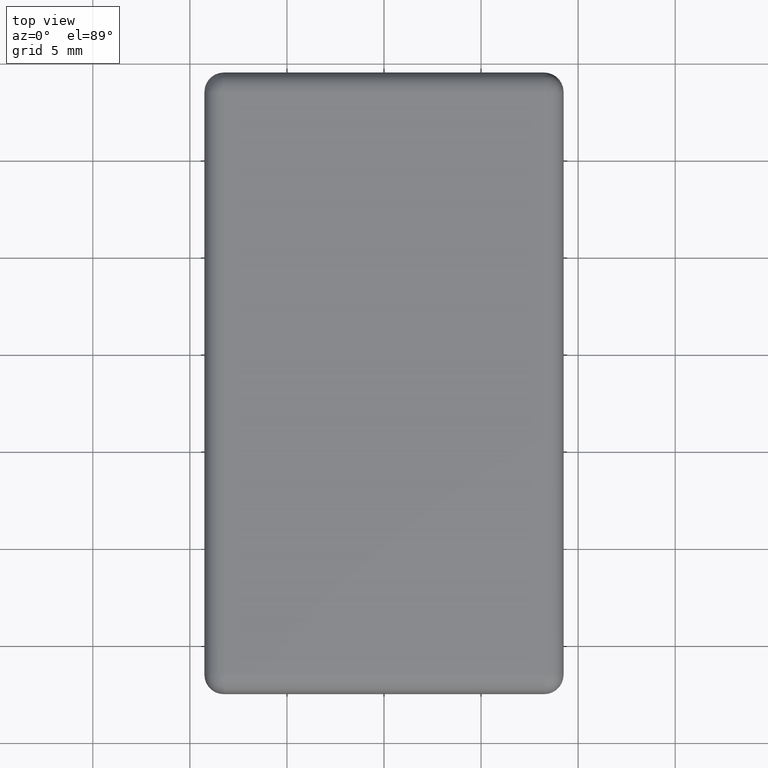
[diagram: clean part render]
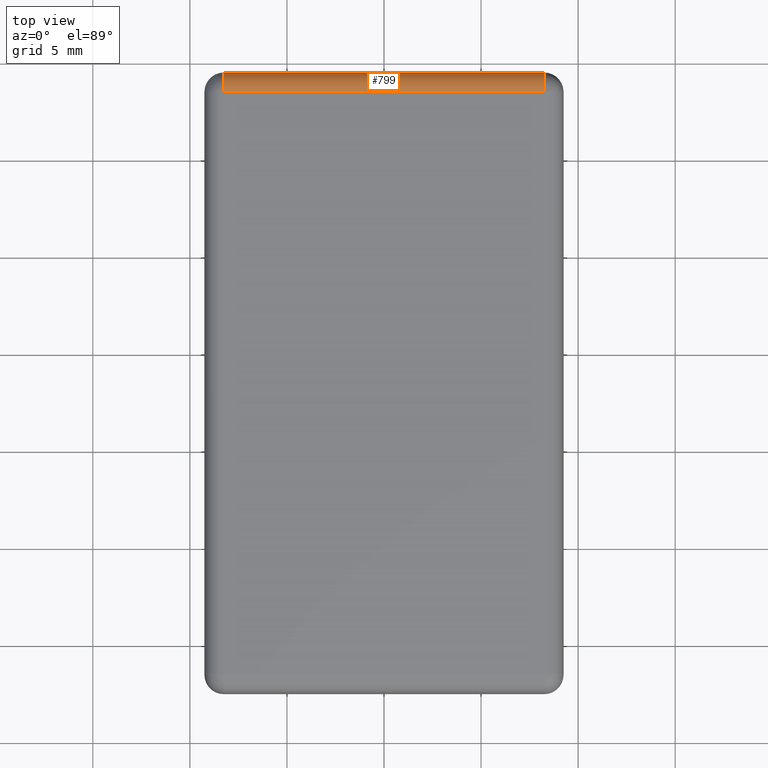
[diagram: same view with one face highlighted and labeled with its STEP entity id]
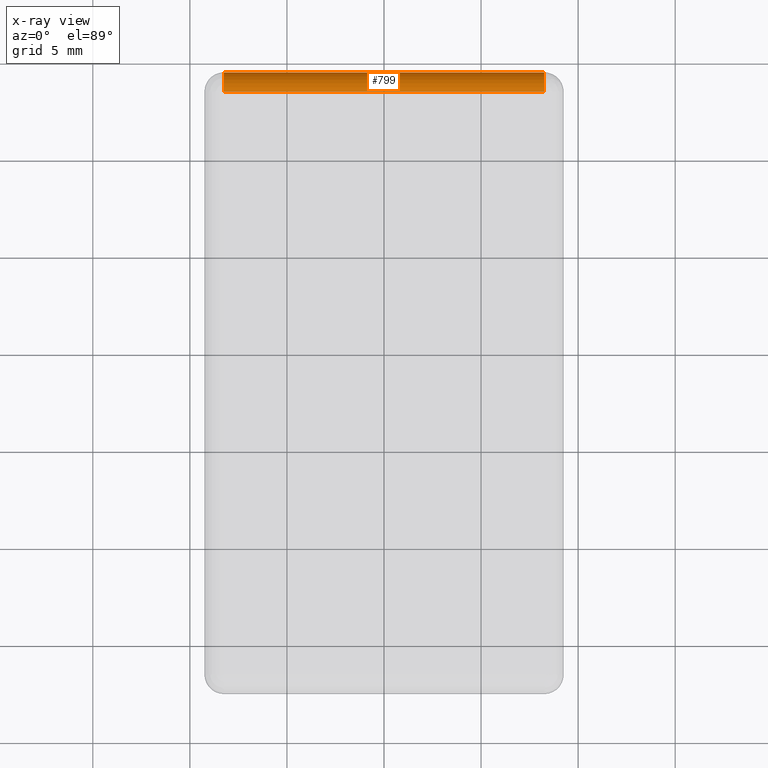
[diagram: x-ray of the same camera — body ghosted, the highlighted face saturated]
A machine part, top view. The second image highlights one B-rep face of the part: STEP entity #799.
The next image is the same camera in x-ray: the body ghosted, the highlighted face saturated — about 0% of this face is hidden behind the body in this view.
In plain terms, the highlighted cylindrical surface (edge-blend (fillet) strip) has radius 1 mm, axis along (1, 0, 0).
Its self-contained STEP definition (entity closure, byte-faithful):
#139=CARTESIAN_POINT('',(8.249999999967258,8.449999999966167,2.499999999989996));
#140=VERTEX_POINT('',#139);
#147=CARTESIAN_POINT('',(-8.249999999962711,8.449999999966167,2.499999999989996));
#148=VERTEX_POINT('',#147);
#149=CARTESIAN_POINT('',(8.249999999967258,8.449999999962074,2.499999999989996));
#150=DIRECTION('',(-1.0,0.0,0.0));
#151=VECTOR('',#150,16.499999999934062);
#152=LINE('',#149,#151);
#153=EDGE_CURVE('',#140,#148,#152,.T.);
#178=CARTESIAN_POINT('',(-8.249999999966803,9.449999999962074,1.499999999989996));
#179=VERTEX_POINT('',#178);
#186=CARTESIAN_POINT('',(8.249999999967258,9.449999999962074,1.499999999989996));
#187=VERTEX_POINT('',#186);
#188=CARTESIAN_POINT('',(8.249999999967258,9.449999999962074,1.499999999989996));
#189=DIRECTION('',(-1.0,0.0,0.0));
#190=VECTOR('',#189,16.499999999934062);
#191=LINE('',#188,#190);
#192=EDGE_CURVE('',#187,#179,#191,.T.);
#447=CARTESIAN_POINT('',(8.249999999967258,8.449999999962074,1.499999999989996));
#448=DIRECTION('',(1.0,0.0,0.0));
#449=DIRECTION('',(0.0,1.0,0.0));
#450=AXIS2_PLACEMENT_3D('',#447,#448,#449);
#451=CIRCLE('',#450,1.0);
#452=EDGE_CURVE('',#187,#140,#451,.T.);
#777=CARTESIAN_POINT('',(-8.249999999966803,8.449999999966167,1.499999999989996));
#778=DIRECTION('',(1.0,0.0,0.0));
#779=DIRECTION('',(0.0,1.0,0.0));
#780=AXIS2_PLACEMENT_3D('',#777,#778,#779);
#781=CIRCLE('',#780,0.999999999995907);
#782=EDGE_CURVE('',#179,#148,#781,.T.);
#788=CARTESIAN_POINT('',(8.249999999967258,8.449999999962074,1.499999999989996));
#789=DIRECTION('',(1.0,0.0,0.0));
#790=DIRECTION('',(0.0,1.0,0.0));
#791=AXIS2_PLACEMENT_3D('',#788,#789,#790);
#792=CYLINDRICAL_SURFACE('',#791,1.0);
#793=ORIENTED_EDGE('',*,*,#192,.T.);
#794=ORIENTED_EDGE('',*,*,#782,.T.);
#795=ORIENTED_EDGE('',*,*,#153,.F.);
#796=ORIENTED_EDGE('',*,*,#452,.F.);
#797=EDGE_LOOP('',(#793,#794,#795,#796));
#798=FACE_OUTER_BOUND('',#797,.T.);
#799=ADVANCED_FACE('',(#798),#792,.T.);